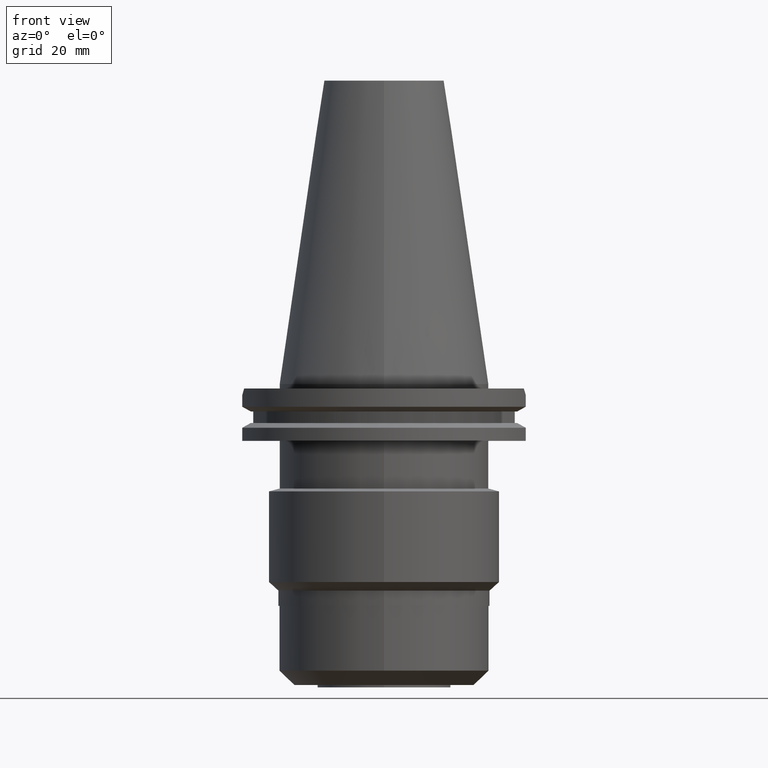
[diagram: clean part render]
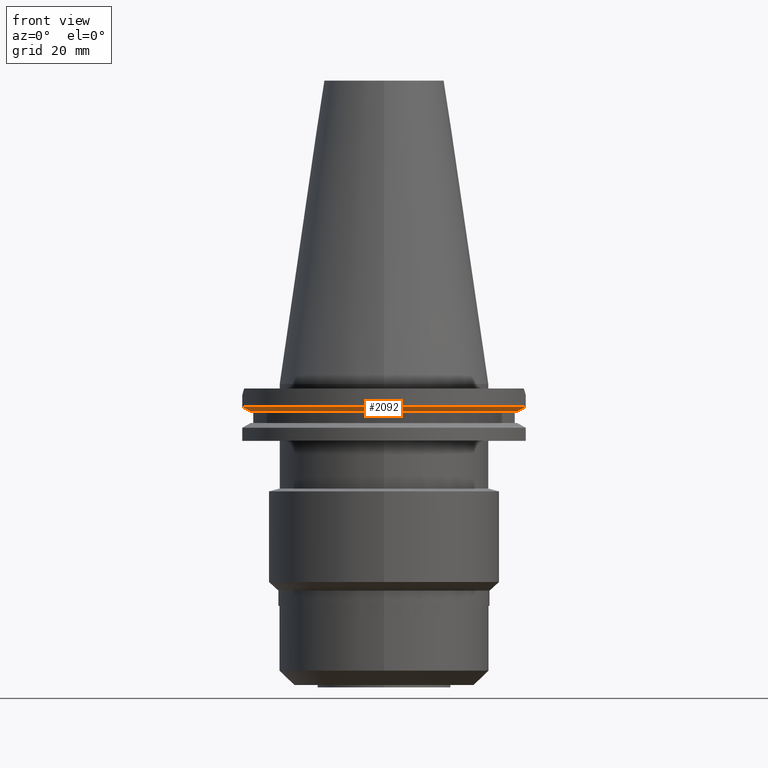
[diagram: same view with one face highlighted and labeled with its STEP entity id]
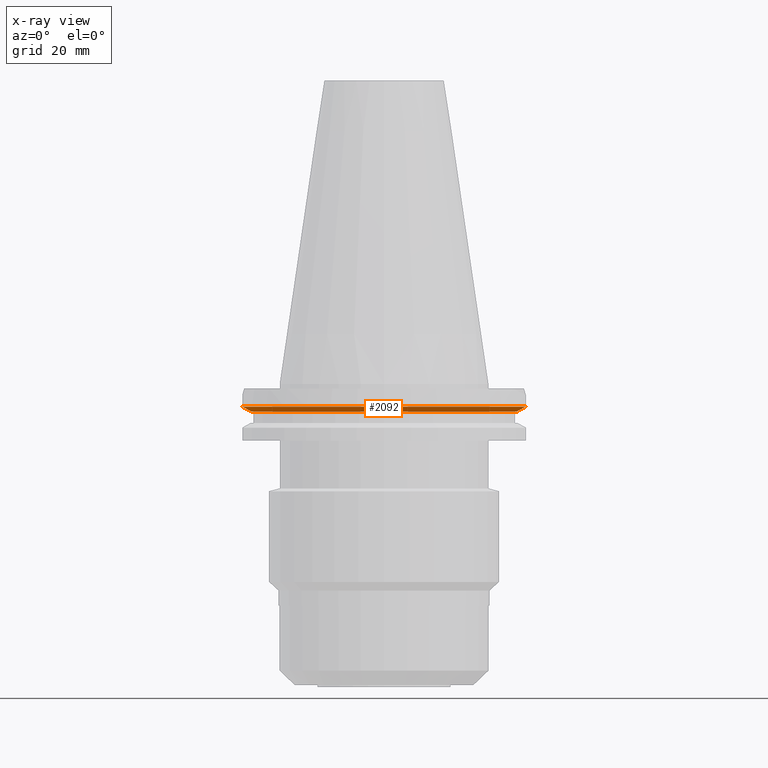
[diagram: x-ray of the same camera — body ghosted, the highlighted face saturated]
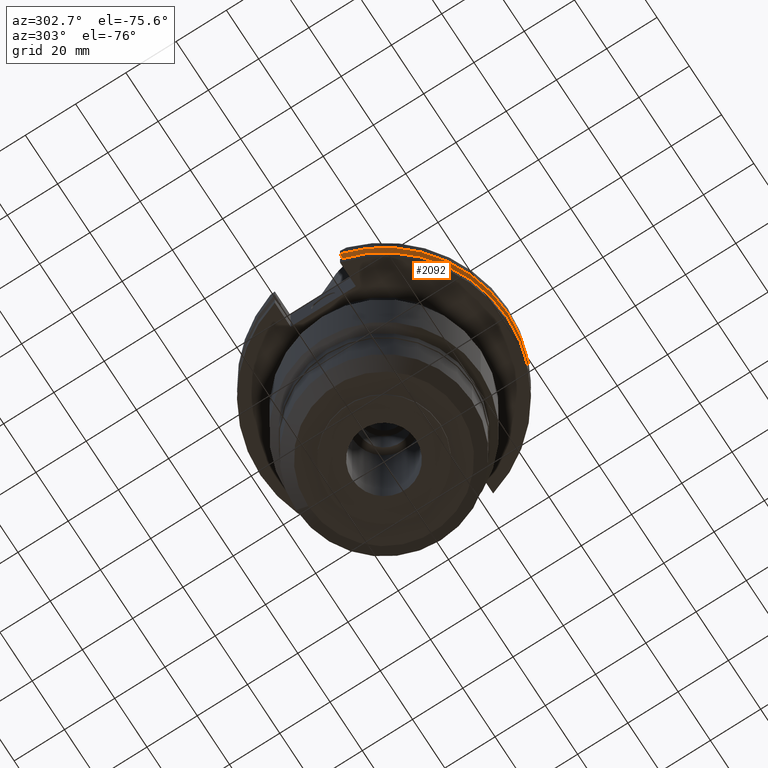
[diagram: same view with one face highlighted and labeled with its STEP entity id]
A machine part, front view. The second image highlights one B-rep face of the part: STEP entity #2092.
The next image is the same camera in x-ray: the body ghosted, the highlighted face saturated — about 0% of this face is hidden behind the body in this view.
A second angle (auxiliary view) of the same face is appended — the face is thin or edge-on in the first view.
In plain terms, the highlighted conical surface has half-angle 60 deg.
Its self-contained STEP definition (entity closure, byte-faithful):
#654=CARTESIAN_POINT('',(4.747671146204E1,-1.2955E1,-7.601333230925E0));
#655=CARTESIAN_POINT('',(4.715593427836E1,-1.2955E1,-7.780001752709E0));
#656=CARTESIAN_POINT('',(4.651414584904E1,-1.2955E1,-8.137199213223E0));
#657=CARTESIAN_POINT('',(4.555077636708E1,-1.2955E1,-8.672605903583E0));
#658=CARTESIAN_POINT('',(4.490806163991E1,-1.2955E1,-9.029261766988E0));
#659=CARTESIAN_POINT('',(4.458657636813E1,-1.2955E1,-9.207500000001E0));
#664=CARTESIAN_POINT('',(-4.458657636813E1,-1.2955E1,-9.207500000001E0));
#665=CARTESIAN_POINT('',(-4.490806163993E1,-1.2955E1,-9.029261766981E0));
#666=CARTESIAN_POINT('',(-4.555077636711E1,-1.2955E1,-8.672605903565E0));
#667=CARTESIAN_POINT('',(-4.651414584908E1,-1.2955E1,-8.137199213205E0));
#668=CARTESIAN_POINT('',(-4.715593427838E1,-1.2955E1,-7.780001752701E0));
#669=CARTESIAN_POINT('',(-4.747671146204E1,-1.2955E1,-7.601333230925E0));
#674=CARTESIAN_POINT('',(0.E0,0.E0,-7.601333230926E0));
#675=DIRECTION('',(0.E0,0.E0,1.E0));
#676=DIRECTION('',(-9.647287063661E-1,-2.632461264923E-1,0.E0));
#677=AXIS2_PLACEMENT_3D('',#674,#675,#676);
#682=CARTESIAN_POINT('',(0.E0,0.E0,-7.601333230926E0));
#683=DIRECTION('',(0.E0,0.E0,1.E0));
#684=DIRECTION('',(0.E0,-1.E0,0.E0));
#685=AXIS2_PLACEMENT_3D('',#682,#683,#684);
#713=CARTESIAN_POINT('',(0.E0,0.E0,-9.207500000003E0));
#714=DIRECTION('',(0.E0,0.E0,1.E0));
#715=DIRECTION('',(-9.602855947900E-1,-2.790189535476E-1,0.E0));
#716=AXIS2_PLACEMENT_3D('',#713,#714,#715);
#721=CARTESIAN_POINT('',(0.E0,0.E0,-9.207500000003E0));
#722=DIRECTION('',(0.E0,0.E0,1.E0));
#723=DIRECTION('',(0.E0,-1.E0,0.E0));
#724=AXIS2_PLACEMENT_3D('',#721,#722,#723);
#1521=CARTESIAN_POINT('',(4.747671146204E1,-1.2955E1,-7.601333230925E0));
#1522=VERTEX_POINT('',#1521);
#1523=CARTESIAN_POINT('',(0.E0,-4.92125E1,-7.601333230926E0));
#1524=VERTEX_POINT('',#1523);
#1525=CARTESIAN_POINT('',(-4.747671146204E1,-1.2955E1,-7.601333230926E0));
#1526=VERTEX_POINT('',#1525);
#1541=CARTESIAN_POINT('',(4.458657636813E1,-1.2955E1,-9.207500000001E0));
#1542=VERTEX_POINT('',#1541);
#1553=VERTEX_POINT('',#664);
#1585=CARTESIAN_POINT('',(0.E0,-4.643053755053E1,-9.207500000003E0));
#1586=VERTEX_POINT('',#1585);
#2077=CARTESIAN_POINT('',(0.E0,0.E0,-8.404416615464E0));
#2078=DIRECTION('',(0.E0,0.E0,1.E0));
#2079=DIRECTION('',(0.E0,1.E0,0.E0));
#2080=AXIS2_PLACEMENT_3D('',#2077,#2078,#2079);
#2081=CONICAL_SURFACE('',#2080,4.782151877527E1,6.E1);
#2082=ORIENTED_EDGE('',*,*,#2029,.T.);
#2084=ORIENTED_EDGE('',*,*,#2083,.F.);
#2086=ORIENTED_EDGE('',*,*,#2085,.F.);
#2087=ORIENTED_EDGE('',*,*,#2063,.T.);
#2088=ORIENTED_EDGE('',*,*,#1990,.T.);
#2089=ORIENTED_EDGE('',*,*,#1988,.T.);
#2090=EDGE_LOOP('',(#2082,#2084,#2086,#2087,#2088,#2089));
#2091=FACE_OUTER_BOUND('',#2090,.F.);
#660=B_SPLINE_CURVE_WITH_KNOTS('',3,(#654,#655,#656,#657,#658,#659),
.UNSPECIFIED.,.F.,.F.,(4,1,1,4),(0.E0,3.333333333333E-1,6.666666666667E-1,1.E0),
.UNSPECIFIED.);
#670=B_SPLINE_CURVE_WITH_KNOTS('',3,(#664,#665,#666,#667,#668,#669),
.UNSPECIFIED.,.F.,.F.,(4,1,1,4),(0.E0,3.333333333333E-1,6.666666666667E-1,1.E0),
.UNSPECIFIED.);
#678=CIRCLE('',#677,4.92125E1);
#686=CIRCLE('',#685,4.92125E1);
#717=CIRCLE('',#716,4.643053755053E1);
#725=CIRCLE('',#724,4.643053755053E1);
#1988=EDGE_CURVE('',#1524,#1522,#686,.T.);
#1990=EDGE_CURVE('',#1526,#1524,#678,.T.);
#2029=EDGE_CURVE('',#1522,#1542,#660,.T.);
#2063=EDGE_CURVE('',#1553,#1526,#670,.T.);
#2083=EDGE_CURVE('',#1586,#1542,#725,.T.);
#2085=EDGE_CURVE('',#1553,#1586,#717,.T.);
#2092=ADVANCED_FACE('',(#2091),#2081,.T.);